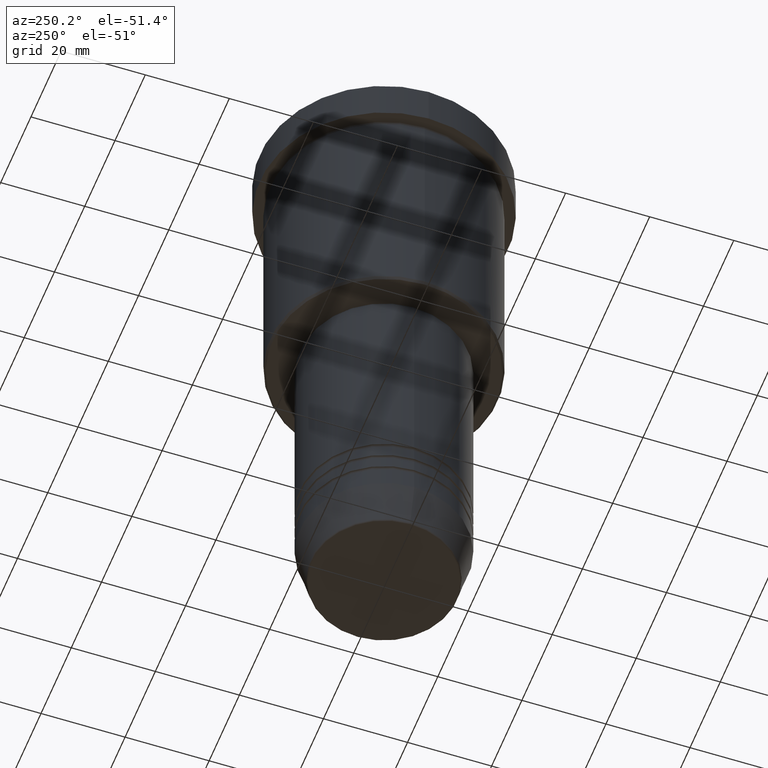
[diagram: clean part render]
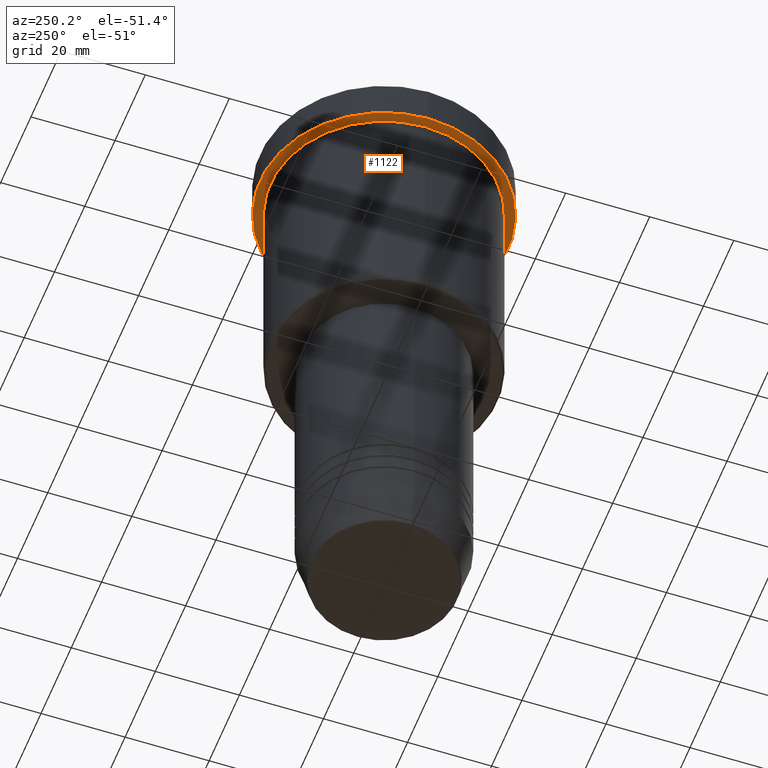
[diagram: same view with one face highlighted and labeled with its STEP entity id]
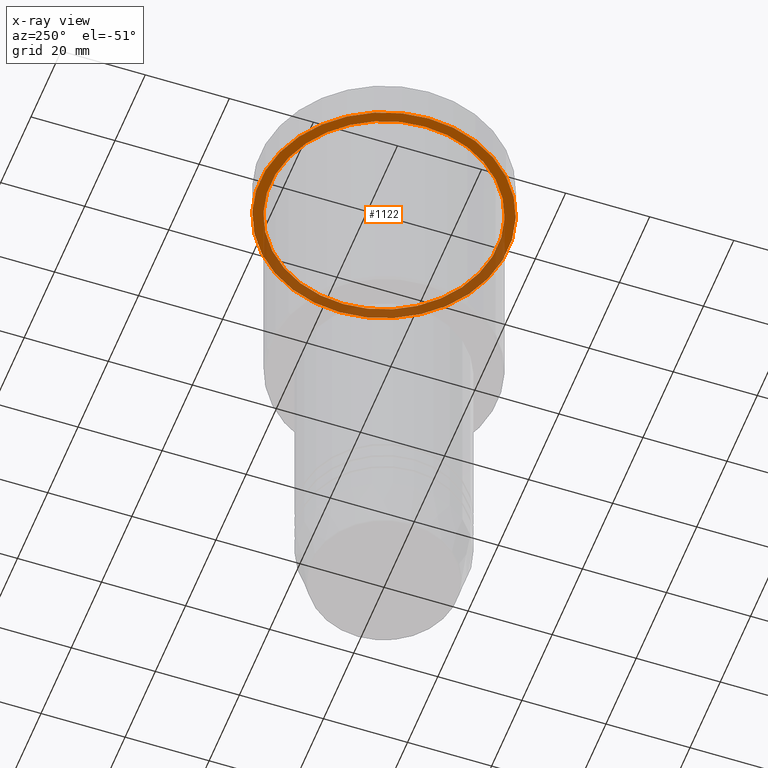
[diagram: x-ray of the same camera — body ghosted, the highlighted face saturated]
A machine part, auxiliary view. The second image highlights one B-rep face of the part: STEP entity #1122.
The next image is the same camera in x-ray: the body ghosted, the highlighted face saturated — about 40% of this face is hidden behind the body in this view.
In plain terms, the highlighted planar face has unit normal (0, 0, -1).
Its self-contained STEP definition (entity closure, byte-faithful):
#1 = FACE_OUTER_BOUND ( 'NONE', #1137, .T. ) ;
#63 = CIRCLE ( 'NONE', #82, 27.00000000000000355 ) ;
#69 = CIRCLE ( 'NONE', #799, 29.50000000000000000 ) ;
#70 = ORIENTED_EDGE ( 'NONE', *, *, #1095, .T. ) ;
#74 = DIRECTION ( 'NONE',  ( 0.000000000000000000, 0.000000000000000000, -1.000000000000000000 ) ) ;
#82 = AXIS2_PLACEMENT_3D ( 'NONE', #635, #989, #459 ) ;
#97 = CIRCLE ( 'NONE', #605, 29.50000000000000000 ) ;
#179 = FACE_BOUND ( 'NONE', #418, .T. ) ;
#316 = VERTEX_POINT ( 'NONE', #1030 ) ;
#323 = CARTESIAN_POINT ( 'NONE',  ( 0.000000000000000000, 0.000000000000000000, -9.999999999999992895 ) ) ;
#339 = ORIENTED_EDGE ( 'NONE', *, *, #370, .F. ) ;
#370 = EDGE_CURVE ( 'NONE', #490, #458, #69, .T. ) ;
#401 = DIRECTION ( 'NONE',  ( -0.000000000000000000, -0.000000000000000000, 1.000000000000000000 ) ) ;
#418 = EDGE_LOOP ( 'NONE', ( #70, #906 ) ) ;
#440 = ORIENTED_EDGE ( 'NONE', *, *, #564, .F. ) ;
#458 = VERTEX_POINT ( 'NONE', #931 ) ;
#459 = DIRECTION ( 'NONE',  ( -1.000000000000000000, 0.000000000000000000, 0.000000000000000000 ) ) ;
#490 = VERTEX_POINT ( 'NONE', #534 ) ;
#534 = CARTESIAN_POINT ( 'NONE',  ( 29.50000000000000000, 0.000000000000000000, -9.999999999999992895 ) ) ;
#564 = EDGE_CURVE ( 'NONE', #458, #490, #97, .T. ) ;
#585 = DIRECTION ( 'NONE',  ( 1.000000000000000000, 0.000000000000000000, 0.000000000000000000 ) ) ;
#588 = DIRECTION ( 'NONE',  ( -0.000000000000000000, -0.000000000000000000, 1.000000000000000000 ) ) ;
#605 = AXIS2_PLACEMENT_3D ( 'NONE', #809, #616, #1159 ) ;
#616 = DIRECTION ( 'NONE',  ( -0.000000000000000000, -0.000000000000000000, 1.000000000000000000 ) ) ;
#618 = CIRCLE ( 'NONE', #775, 27.00000000000000355 ) ;
#635 = CARTESIAN_POINT ( 'NONE',  ( 0.000000000000000000, 0.000000000000000000, -9.999999999999992895 ) ) ;
#649 = CARTESIAN_POINT ( 'NONE',  ( -27.00000000000000355, 0.000000000000000000, -9.999999999999992895 ) ) ;
#669 = CARTESIAN_POINT ( 'NONE',  ( 0.000000000000000000, 0.000000000000000000, -9.999999999999992895 ) ) ;
#754 = EDGE_CURVE ( 'NONE', #316, #1163, #618, .T. ) ;
#775 = AXIS2_PLACEMENT_3D ( 'NONE', #323, #588, #843 ) ;
#799 = AXIS2_PLACEMENT_3D ( 'NONE', #669, #401, #585 ) ;
#809 = CARTESIAN_POINT ( 'NONE',  ( 0.000000000000000000, 0.000000000000000000, -9.999999999999992895 ) ) ;
#811 = PLANE ( 'NONE',  #1175 ) ;
#843 = DIRECTION ( 'NONE',  ( -1.000000000000000000, 0.000000000000000000, 0.000000000000000000 ) ) ;
#905 = CARTESIAN_POINT ( 'NONE',  ( 0.000000000000000000, 29.50000000000000000, -9.999999999999992895 ) ) ;
#906 = ORIENTED_EDGE ( 'NONE', *, *, #754, .T. ) ;
#931 = CARTESIAN_POINT ( 'NONE',  ( -29.50000000000000000, 3.612708057484691604E-15, -9.999999999999992895 ) ) ;
#989 = DIRECTION ( 'NONE',  ( -0.000000000000000000, -0.000000000000000000, 1.000000000000000000 ) ) ;
#993 = DIRECTION ( 'NONE',  ( -1.000000000000000000, 0.000000000000000000, -0.000000000000000000 ) ) ;
#1030 = CARTESIAN_POINT ( 'NONE',  ( 27.00000000000000355, 3.306546357697854128E-15, -9.999999999999992895 ) ) ;
#1095 = EDGE_CURVE ( 'NONE', #1163, #316, #63, .T. ) ;
#1122 = ADVANCED_FACE ( 'NONE', ( #179, #1 ), #811, .T. ) ;
#1137 = EDGE_LOOP ( 'NONE', ( #339, #440 ) ) ;
#1159 = DIRECTION ( 'NONE',  ( 1.000000000000000000, 0.000000000000000000, 0.000000000000000000 ) ) ;
#1163 = VERTEX_POINT ( 'NONE', #649 ) ;
#1175 = AXIS2_PLACEMENT_3D ( 'NONE', #905, #74, #993 ) ;